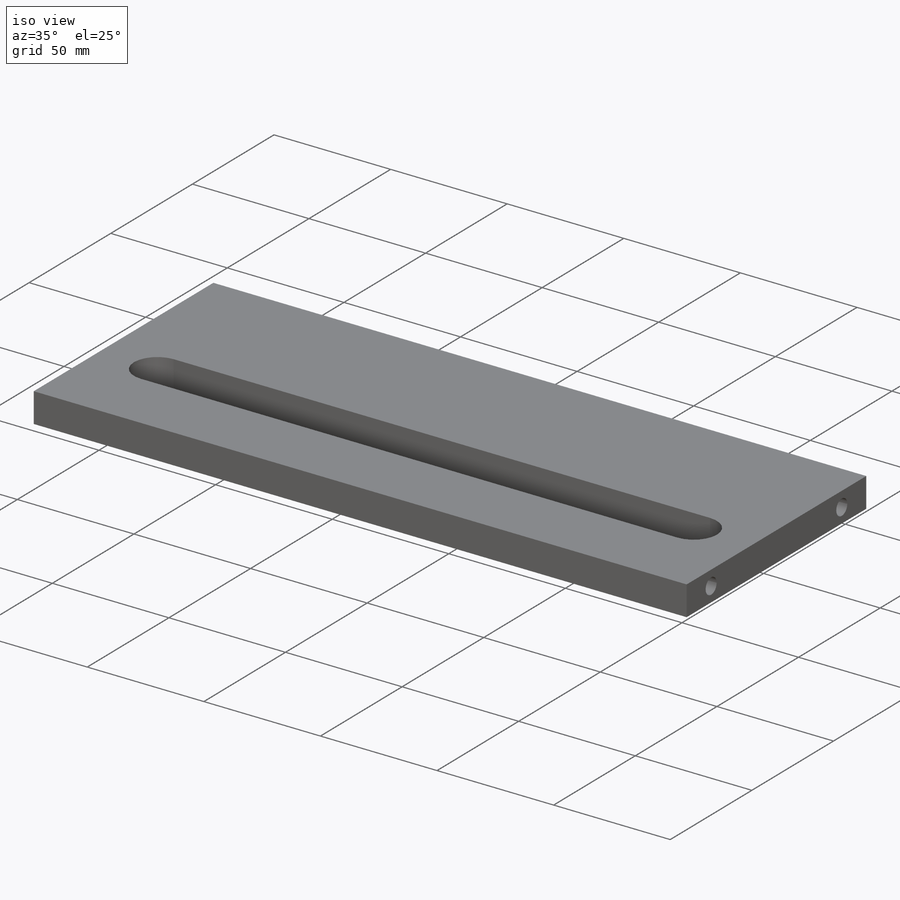
[diagram: iso view]
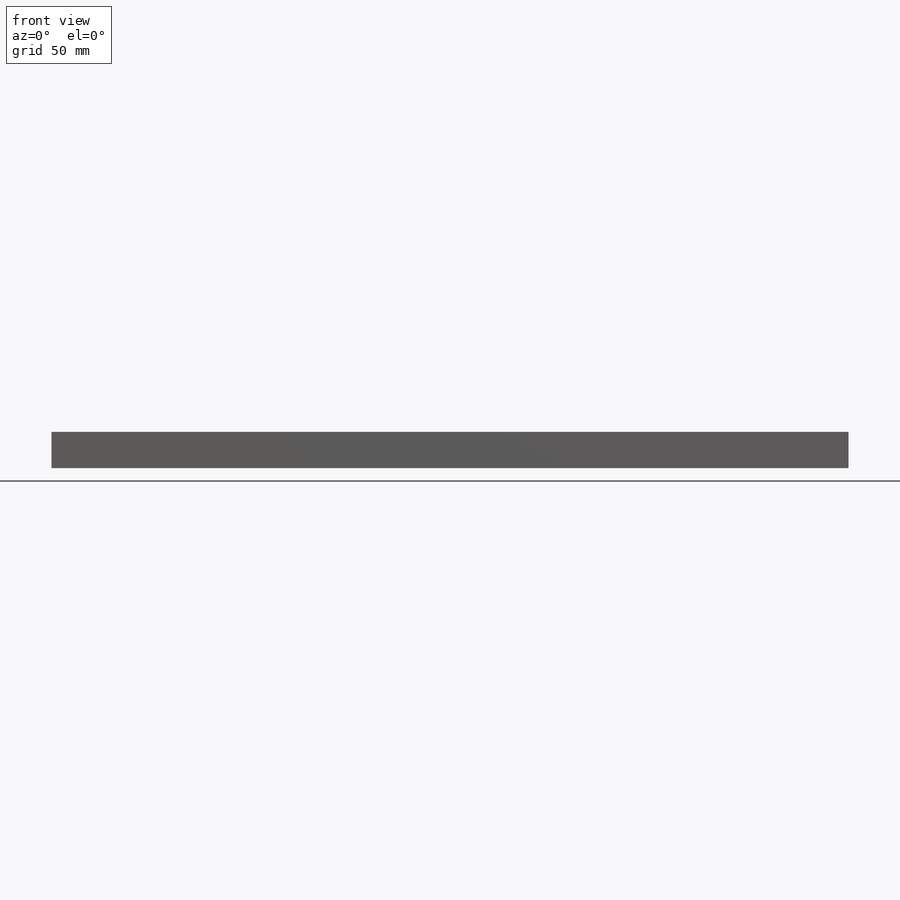
[diagram: front view]
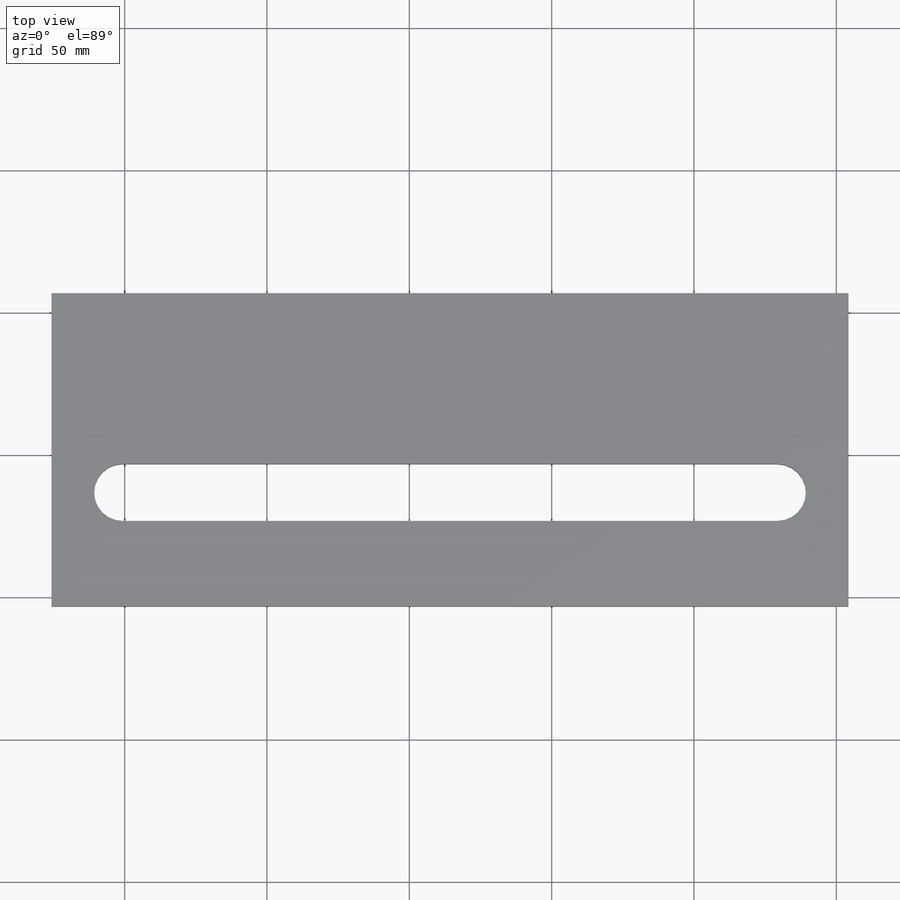
[diagram: top view]
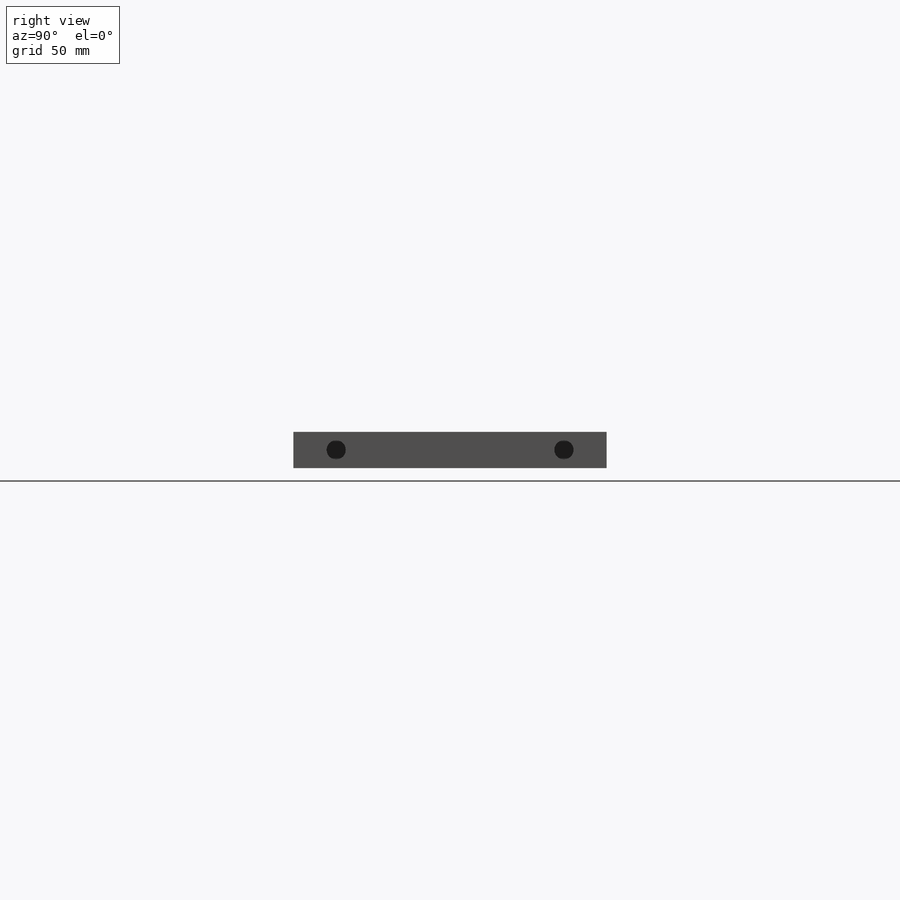
[diagram: right view]
SOLIDWORKS PART (.sldprt)
format: sldprt  version: not decoded by parser v0  size: 207,872 bytes
history: native  units: mm
features: sketch x4, plane x3, cut_extrude x3, material x1, extrude x1 (+10 scaffold rows collapsed)
feature tree (22):
  scaffold x10  (default folders/planes/origin — collapsed)
  material  "Material <sin especificar>"
  plane  "Alzado"
  plane  "Planta"
  plane  "Vista lateral"
  sketch  "Croquis1"  dims[D1=280.0mm D2=110.0mm]
  extrude  "Saliente-Extruir1"  Depth=12.7mm
  sketch  "Croquis2"  dims[c1.D4=10.0mm c1.D1=60.0mm c1.D2=20.0mm c1.D3=230.0mm c2.D4=25.0mm]
  cut_extrude  "Cortar-Extruir2"  Depth=20mm
  sketch  "Croquis5"  dims[D3=6.75mm D6=6.75mm D1=15.0mm D2=6.35mm D4=15.0mm D5=6.35mm]
  cut_extrude  "Cortar-Extruir5"  Depth=30mm
  sketch  "Croquis6"  dims[D1=6.75mm D2=6.75mm D3=6.35mm D4=6.35mm D5=15.0mm D6=15.0mm]
  cut_extrude  "Cortar-Extruir6"  Depth=30mm
decode coverage: 8 of 8 modeling features carry decoded parameters
note: suppression state not decoded; provenance and decode notes live in map.json
